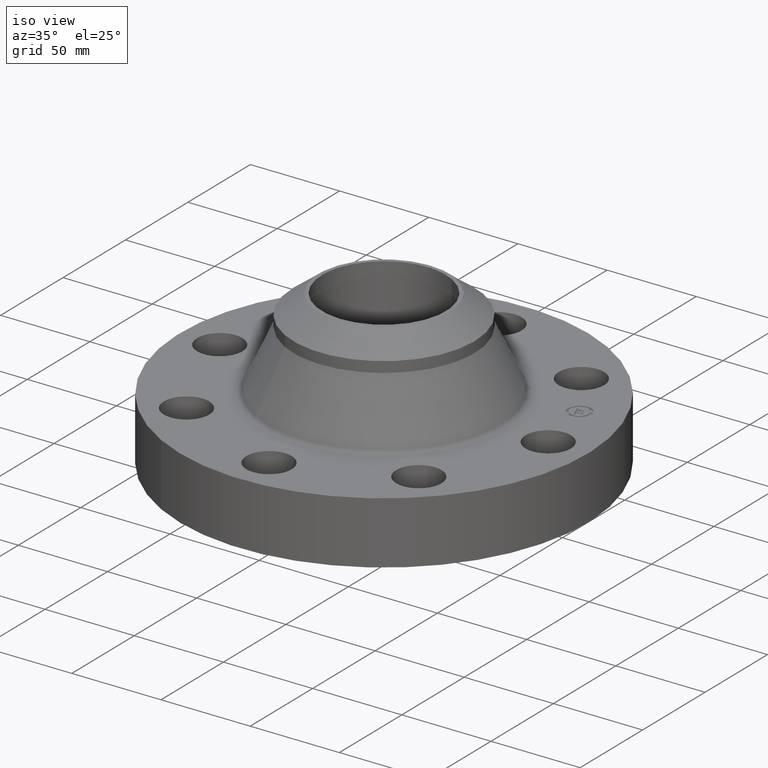
[diagram: clean part render]
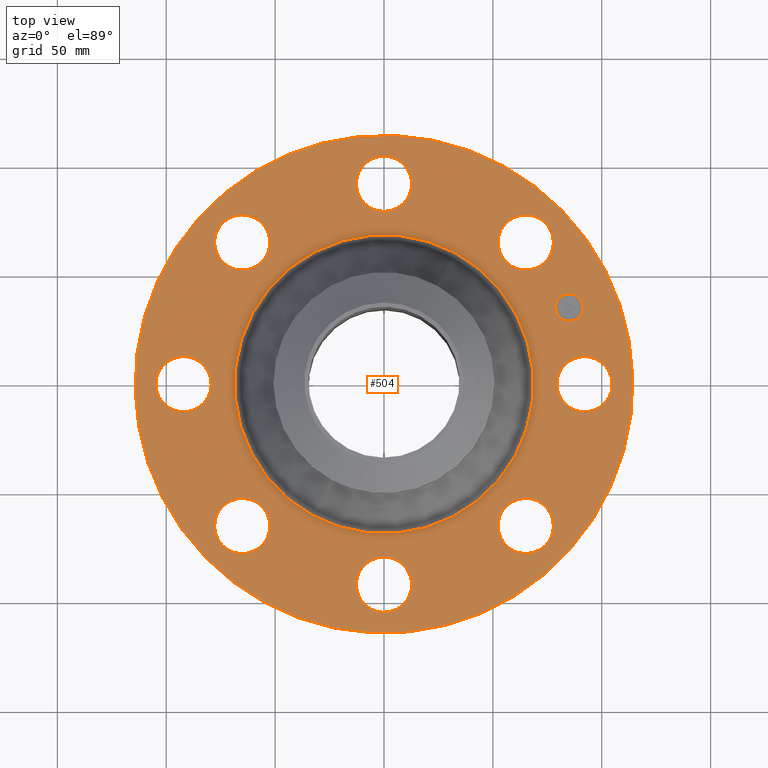
[diagram: tour spotlight — one face highlighted and labeled with its STEP entity id]
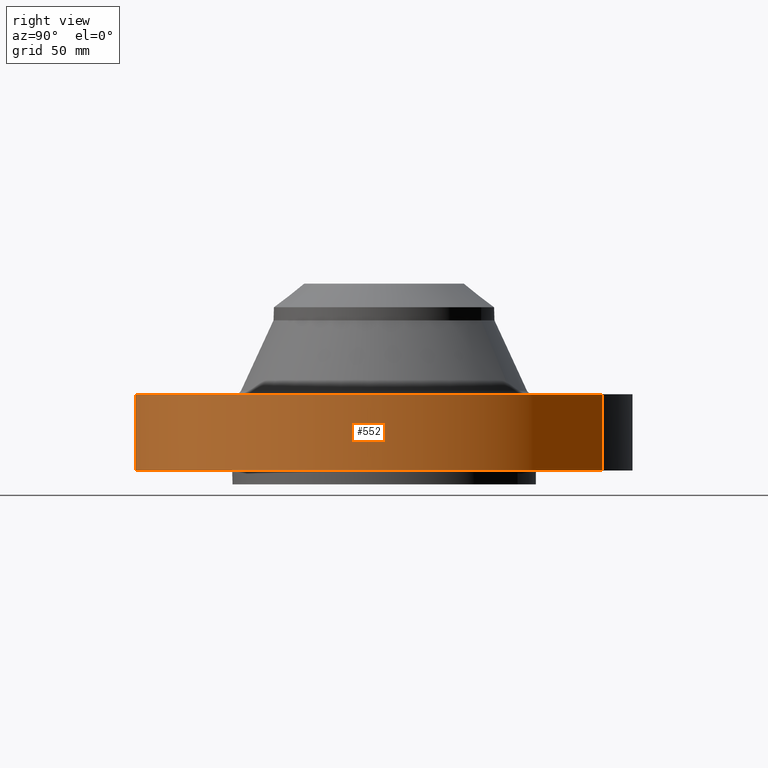
[diagram: tour spotlight — one face highlighted and labeled with its STEP entity id]
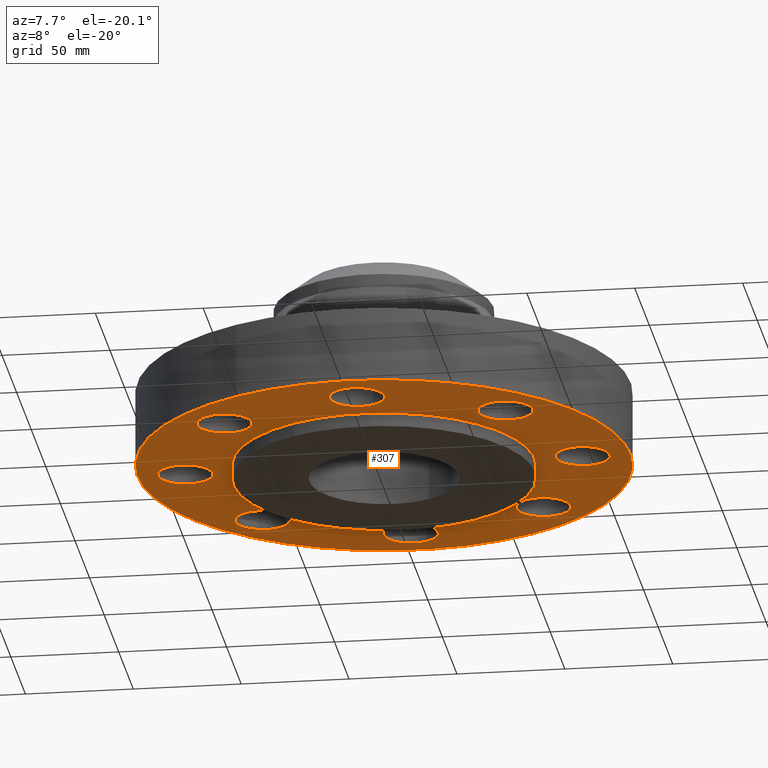
[diagram: tour spotlight — one face highlighted and labeled with its STEP entity id]
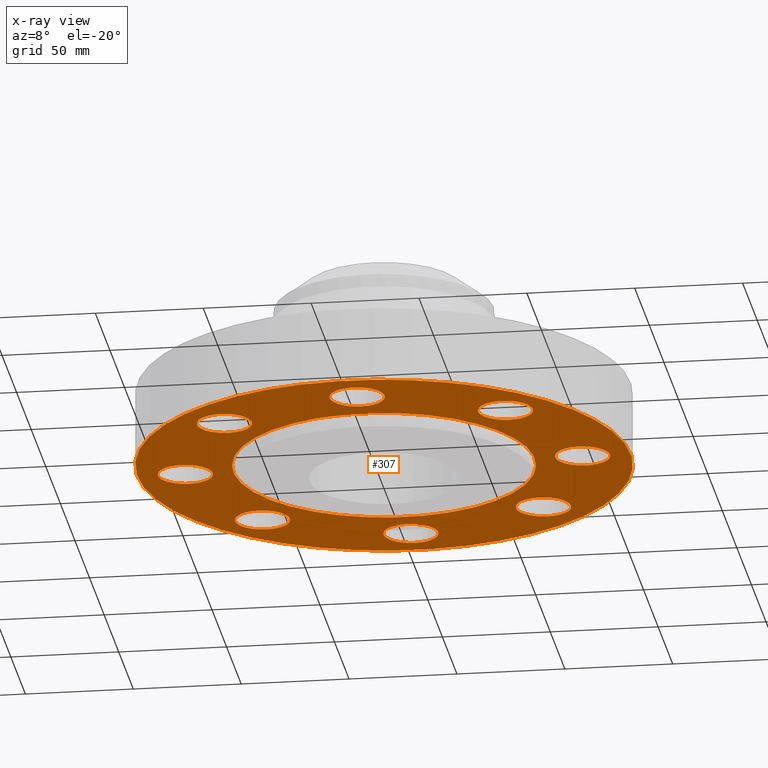
[diagram: x-ray of the same camera — body ghosted, this tour face saturated]
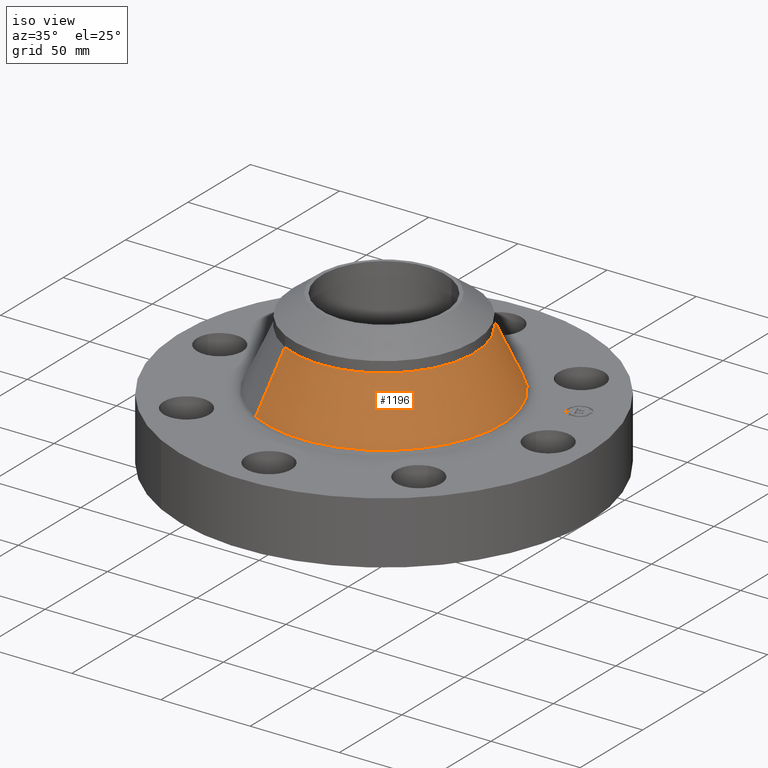
[diagram: tour spotlight — one face highlighted and labeled with its STEP entity id]
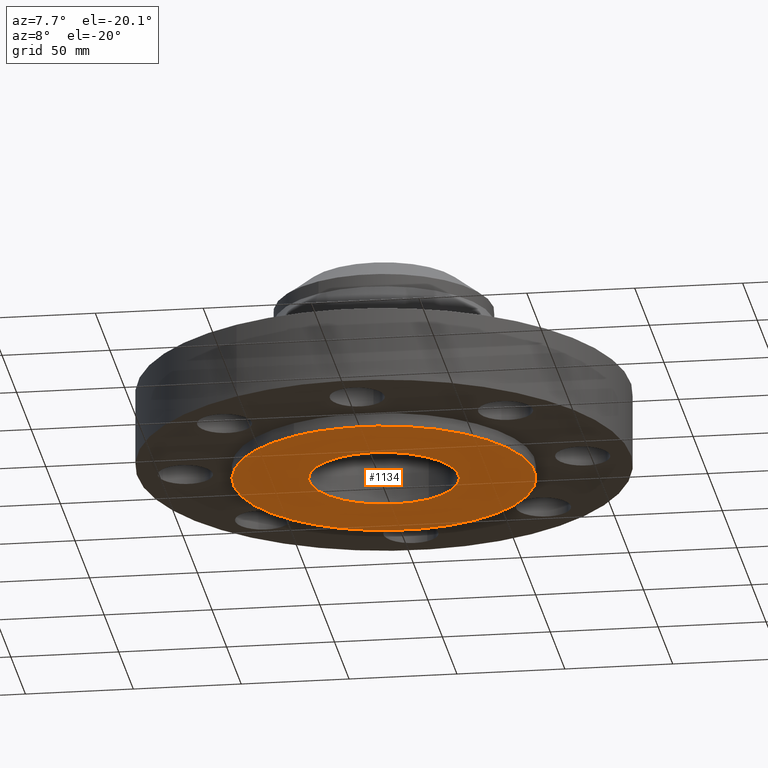
[diagram: tour spotlight — one face highlighted and labeled with its STEP entity id]
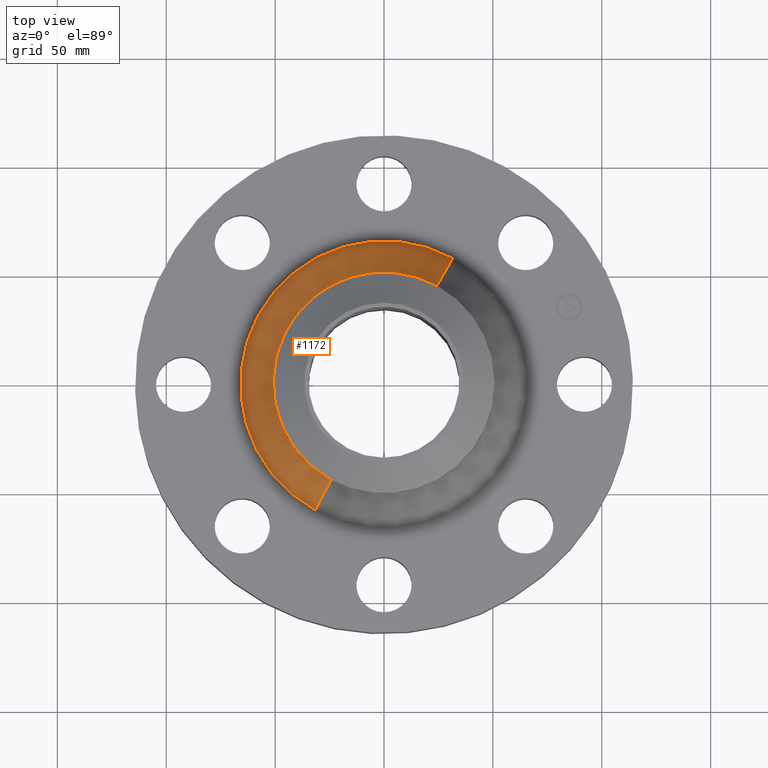
[diagram: tour spotlight — one face highlighted and labeled with its STEP entity id]
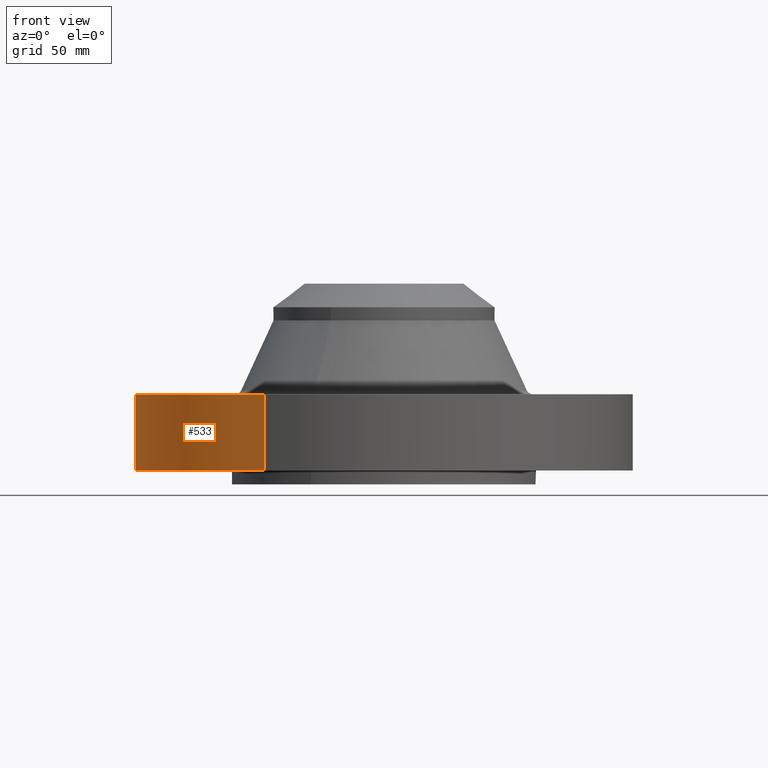
[diagram: tour spotlight — one face highlighted and labeled with its STEP entity id]
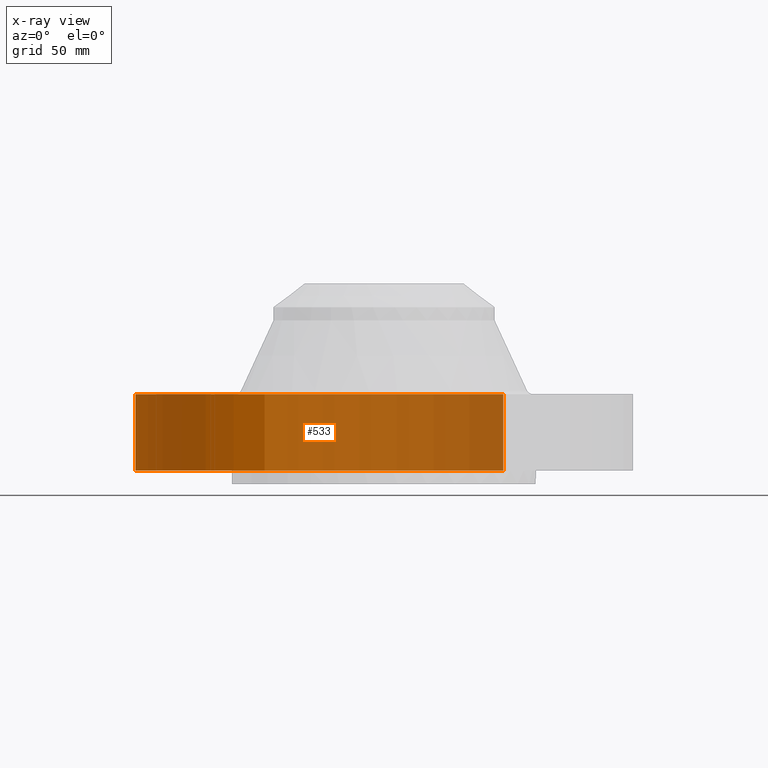
[diagram: x-ray of the same camera — body ghosted, this tour face saturated]
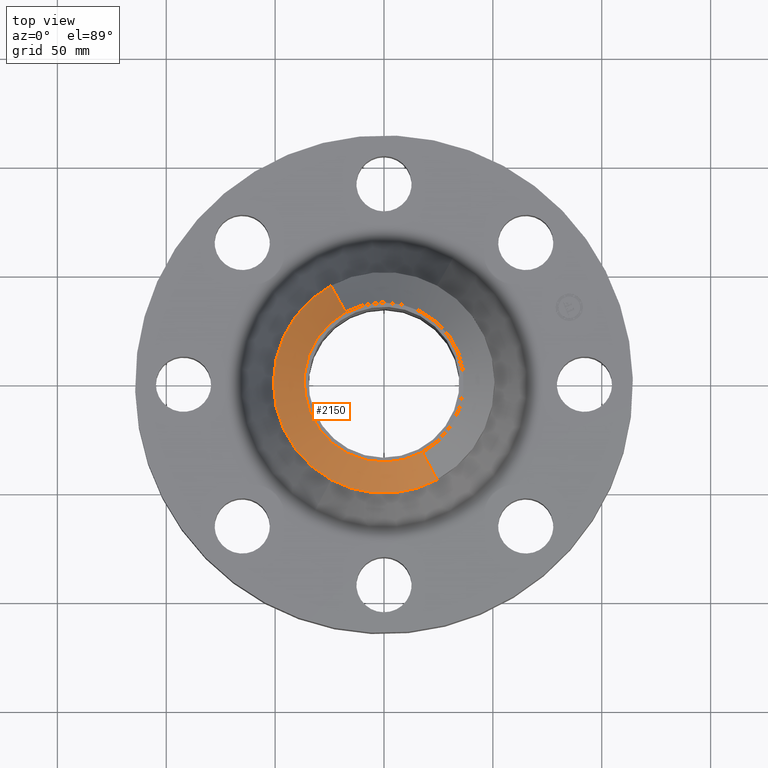
[diagram: tour spotlight — one face highlighted and labeled with its STEP entity id]
A machine part: a face-by-face anatomy tour. The part has 419 B-rep faces; the first image is the clean iso view, then the 8 largest visible faces are spotlighted one at a time (largest first), each with its STEP entity span.

Face 1 — top view, entity #504. In plain terms, the highlighted planar face has unit normal (0, 0, -1).
Definition (entity closure, byte-faithful):
#65=AXIS2_PLACEMENT_3D('Circle Axis2P3D',#63,#64,$) ;
#318=AXIS2_PLACEMENT_3D('Plane Axis2P3D',#315,#316,#317) ;
#322=AXIS2_PLACEMENT_3D('Circle Axis2P3D',#320,#321,$) ;
#331=AXIS2_PLACEMENT_3D('Circle Axis2P3D',#329,#330,$) ;
#344=AXIS2_PLACEMENT_3D('Circle Axis2P3D',#342,#343,$) ;
#353=AXIS2_PLACEMENT_3D('Circle Axis2P3D',#351,#352,$) ;
#362=AXIS2_PLACEMENT_3D('Circle Axis2P3D',#360,#361,$) ;
#371=AXIS2_PLACEMENT_3D('Circle Axis2P3D',#369,#370,$) ;
#380=AXIS2_PLACEMENT_3D('Circle Axis2P3D',#378,#379,$) ;
#389=AXIS2_PLACEMENT_3D('Circle Axis2P3D',#387,#388,$) ;
#398=AXIS2_PLACEMENT_3D('Circle Axis2P3D',#396,#397,$) ;
#407=AXIS2_PLACEMENT_3D('Circle Axis2P3D',#405,#406,$) ;
#416=AXIS2_PLACEMENT_3D('Circle Axis2P3D',#414,#415,$) ;
#425=AXIS2_PLACEMENT_3D('Circle Axis2P3D',#423,#424,$) ;
#434=AXIS2_PLACEMENT_3D('Circle Axis2P3D',#432,#433,$) ;
#443=AXIS2_PLACEMENT_3D('Circle Axis2P3D',#441,#442,$) ;
#452=AXIS2_PLACEMENT_3D('Circle Axis2P3D',#450,#451,$) ;
#461=AXIS2_PLACEMENT_3D('Circle Axis2P3D',#459,#460,$) ;
#470=AXIS2_PLACEMENT_3D('Circle Axis2P3D',#468,#469,$) ;
#479=AXIS2_PLACEMENT_3D('Circle Axis2P3D',#477,#478,$) ;
#488=AXIS2_PLACEMENT_3D('Circle Axis2P3D',#486,#487,$) ;
#497=AXIS2_PLACEMENT_3D('Circle Axis2P3D',#495,#496,$) ;
#46=CARTESIAN_POINT('Vertex',(3.18620871906,0.239712769303,1.37999999999)) ;
#60=CARTESIAN_POINT('Vertex',(4.06379128096,-0.239712769302,1.37999999999)) ;
#63=CARTESIAN_POINT('Axis2P3D Location',(3.62500000001,0.,1.37999999999)) ;
#106=CARTESIAN_POINT('Control Point',(4.06379128096,-0.239712769302,1.37999999999)) ;
#107=CARTESIAN_POINT('Control Point',(4.02613728721,-0.308637942536,1.37999999999)) ;
#108=CARTESIAN_POINT('Control Point',(3.97494986734,-0.370169771386,1.37999999999)) ;
#109=CARTESIAN_POINT('Control Point',(3.91215377557,-0.420753227527,1.37999999999)) ;
#110=CARTESIAN_POINT('Control Point',(3.77011145901,-0.494572276324,1.37999999999)) ;
#111=CARTESIAN_POINT('Control Point',(3.61070236874,-0.509201479801,1.38)) ;
#112=CARTESIAN_POINT('Control Point',(3.53053092156,-0.500565842331,1.38)) ;
#113=CARTESIAN_POINT('Control Point',(3.37789388632,-0.452324707065,1.38)) ;
#114=CARTESIAN_POINT('Control Point',(3.25483022862,-0.349949867328,1.38)) ;
#115=CARTESIAN_POINT('Control Point',(3.20424677248,-0.287153775558,1.38)) ;
#116=CARTESIAN_POINT('Control Point',(3.13042772369,-0.145111459003,1.38)) ;
#117=CARTESIAN_POINT('Control Point',(3.11579852021,0.0142976312751,1.38000000001)) ;
#118=CARTESIAN_POINT('Control Point',(3.12443415768,0.0944690784508,1.38000000001)) ;
#119=CARTESIAN_POINT('Control Point',(3.14855472531,0.170787596069,1.38000000001)) ;
#120=CARTESIAN_POINT('Control Point',(3.18620871906,0.239712769303,1.38000000001)) ;
#315=CARTESIAN_POINT('Axis2P3D Location',(0.,4.50000000002,1.38000000001)) ;
#320=CARTESIAN_POINT('Axis2P3D Location',(1.1189649382E-015,-9.33216758463E-012,1.38000000001)) ;
#324=CARTESIAN_POINT('Vertex',(2.15741492373,3.94912152852,1.38000000005)) ;
#326=CARTESIAN_POINT('Vertex',(-2.15741492373,-3.94912152852,1.38000000005)) ;
#329=CARTESIAN_POINT('Axis2P3D Location',(-1.1189649382E-015,-9.33328654957E-012,1.38000000001)) ;
#342=CARTESIAN_POINT('Axis2P3D Location',(2.79741234551E-016,-9.3327270671E-012,1.38000000001)) ;
#346=CARTESIAN_POINT('Vertex',(-1.29509544662,-2.37065631349,1.38000000001)) ;
#348=CARTESIAN_POINT('Vertex',(1.29509544662,2.37065631349,1.38000000001)) ;
#351=CARTESIAN_POINT('Axis2P3D Location',(-2.79741234551E-016,-9.3327270671E-012,1.38000000001)) ;
#360=CARTESIAN_POINT('Axis2P3D Location',(2.56326208183,-2.56326208177,1.38000000001)) ;
#364=CARTESIAN_POINT('Vertex',(2.70403184738,-3.0430368968,1.37999999999)) ;
#366=CARTESIAN_POINT('Vertex',(2.42249231624,-2.08348726682,1.37999999999)) ;
#369=CARTESIAN_POINT('Axis2P3D Location',(2.56326208183,-2.56326208177,1.38000000001)) ;
#378=CARTESIAN_POINT('Axis2P3D Location',(-4.36655785895E-011,-3.62499999999,1.38000000001)) ;
#382=CARTESIAN_POINT('Vertex',(-0.239712769302,-4.06379128096,1.37999999999)) ;
#384=CARTESIAN_POINT('Vertex',(0.239712769303,-3.18620871906,1.37999999999)) ;
#387=CARTESIAN_POINT('Axis2P3D Location',(1.28116589953E-011,-3.62500000002,1.38000000001)) ;
#396=CARTESIAN_POINT('Axis2P3D Location',(-2.56326208185,-2.56326208179,1.38000000001)) ;
#400=CARTESIAN_POINT('Vertex',(-3.0430368968,-2.70403184738,1.37999999999)) ;
#402=CARTESIAN_POINT('Vertex',(-2.08348726682,-2.42249231624,1.37999999999)) ;
#405=CARTESIAN_POINT('Axis2P3D Location',(-2.56326208185,-2.56326208179,1.38000000001)) ;
#414=CARTESIAN_POINT('Axis2P3D Location',(-3.62499999998,3.43326417165E-011,1.38000000001)) ;
#418=CARTESIAN_POINT('Vertex',(-4.06379128096,0.239712769302,1.37999999999)) ;
#420=CARTESIAN_POINT('Vertex',(-3.18620871906,-0.239712769303,1.37999999999)) ;
#423=CARTESIAN_POINT('Axis2P3D Location',(-3.625,3.47886199288E-012,1.38000000001)) ;
#432=CARTESIAN_POINT('Axis2P3D Location',(-2.56326208185,2.56326208182,1.38000000001)) ;
#436=CARTESIAN_POINT('Vertex',(-2.70403184738,3.0430368968,1.37999999999)) ;
#438=CARTESIAN_POINT('Vertex',(-2.42249231624,2.08348726682,1.37999999999)) ;
#441=CARTESIAN_POINT('Axis2P3D Location',(-2.56326208185,2.56326208182,1.38000000001)) ;
#450=CARTESIAN_POINT('Axis2P3D Location',(1.28116589953E-011,3.62499999999,1.38000000001)) ;
#454=CARTESIAN_POINT('Vertex',(0.239712769302,4.06379128096,1.37999999999)) ;
#456=CARTESIAN_POINT('Vertex',(-0.239712769303,3.18620871906,1.37999999999)) ;
#459=CARTESIAN_POINT('Axis2P3D Location',(-4.36655785895E-011,3.62500000002,1.38000000001)) ;
#468=CARTESIAN_POINT('Axis2P3D Location',(2.56326208183,2.56326208184,1.38000000001)) ;
#472=CARTESIAN_POINT('Vertex',(3.0430368968,2.70403184738,1.37999999999)) ;
#474=CARTESIAN_POINT('Vertex',(2.08348726682,2.42249231624,1.37999999999)) ;
#477=CARTESIAN_POINT('Axis2P3D Location',(2.56326208183,2.56326208184,1.38000000001)) ;
#486=CARTESIAN_POINT('Axis2P3D Location',(3.34906330537,1.38722744234,1.38000000001)) ;
#490=CARTESIAN_POINT('Vertex',(3.25434915589,1.61588762666,1.38000000001)) ;
#492=CARTESIAN_POINT('Vertex',(3.44377745486,1.15856725802,1.38000000001)) ;
#495=CARTESIAN_POINT('Axis2P3D Location',(3.34906330535,1.38722744233,1.38000000001)) ;
#64=DIRECTION('Axis2P3D Direction',(0.,-0.,-0.0393700787402)) ;
#316=DIRECTION('Axis2P3D Direction',(0.,0.,-0.0393700787402)) ;
#317=DIRECTION('Axis2P3D XDirection',(0.0393700787402,0.,0.)) ;
#321=DIRECTION('Axis2P3D Direction',(0.,0.,-0.0393700787402)) ;
#330=DIRECTION('Axis2P3D Direction',(0.,0.,-0.0393700787402)) ;
#343=DIRECTION('Axis2P3D Direction',(0.,0.,-0.0393700787402)) ;
#352=DIRECTION('Axis2P3D Direction',(0.,0.,-0.0393700787402)) ;
#361=DIRECTION('Axis2P3D Direction',(0.,0.,-0.0393700787402)) ;
#370=DIRECTION('Axis2P3D Direction',(0.,0.,-0.0393700787402)) ;
#379=DIRECTION('Axis2P3D Direction',(0.,0.,-0.0393700787402)) ;
#388=DIRECTION('Axis2P3D Direction',(0.,0.,-0.0393700787402)) ;
#397=DIRECTION('Axis2P3D Direction',(0.,0.,-0.0393700787402)) ;
#406=DIRECTION('Axis2P3D Direction',(0.,0.,-0.0393700787402)) ;
#415=DIRECTION('Axis2P3D Direction',(0.,0.,-0.0393700787402)) ;
#424=DIRECTION('Axis2P3D Direction',(0.,0.,-0.0393700787402)) ;
#433=DIRECTION('Axis2P3D Direction',(0.,0.,-0.0393700787402)) ;
#442=DIRECTION('Axis2P3D Direction',(0.,0.,-0.0393700787402)) ;
#451=DIRECTION('Axis2P3D Direction',(0.,0.,-0.0393700787402)) ;
#460=DIRECTION('Axis2P3D Direction',(0.,0.,-0.0393700787402)) ;
#469=DIRECTION('Axis2P3D Direction',(0.,0.,-0.0393700787402)) ;
#478=DIRECTION('Axis2P3D Direction',(0.,0.,-0.0393700787402)) ;
#487=DIRECTION('Axis2P3D Direction',(0.,0.,-0.0393700787402)) ;
#496=DIRECTION('Axis2P3D Direction',(0.,0.,-0.0393700787402)) ;
#335=ORIENTED_EDGE('',*,*,#328,.F.) ;
#336=ORIENTED_EDGE('',*,*,#333,.F.) ;
#339=ORIENTED_EDGE('',*,*,#67,.T.) ;
#340=ORIENTED_EDGE('',*,*,#121,.T.) ;
#357=ORIENTED_EDGE('',*,*,#350,.T.) ;
#358=ORIENTED_EDGE('',*,*,#355,.T.) ;
#375=ORIENTED_EDGE('',*,*,#368,.T.) ;
#376=ORIENTED_EDGE('',*,*,#373,.T.) ;
#393=ORIENTED_EDGE('',*,*,#386,.T.) ;
#394=ORIENTED_EDGE('',*,*,#391,.T.) ;
#411=ORIENTED_EDGE('',*,*,#404,.T.) ;
#412=ORIENTED_EDGE('',*,*,#409,.T.) ;
#429=ORIENTED_EDGE('',*,*,#422,.T.) ;
#430=ORIENTED_EDGE('',*,*,#427,.T.) ;
#447=ORIENTED_EDGE('',*,*,#440,.T.) ;
#448=ORIENTED_EDGE('',*,*,#445,.T.) ;
#465=ORIENTED_EDGE('',*,*,#458,.T.) ;
#466=ORIENTED_EDGE('',*,*,#463,.T.) ;
#483=ORIENTED_EDGE('',*,*,#476,.T.) ;
#484=ORIENTED_EDGE('',*,*,#481,.T.) ;
#501=ORIENTED_EDGE('',*,*,#494,.T.) ;
#502=ORIENTED_EDGE('',*,*,#499,.T.) ;
#341=FACE_BOUND('',#338,.T.) ;
#359=FACE_BOUND('',#356,.T.) ;
#377=FACE_BOUND('',#374,.T.) ;
#395=FACE_BOUND('',#392,.T.) ;
#413=FACE_BOUND('',#410,.T.) ;
#431=FACE_BOUND('',#428,.T.) ;
#449=FACE_BOUND('',#446,.T.) ;
#467=FACE_BOUND('',#464,.T.) ;
#485=FACE_BOUND('',#482,.T.) ;
#503=FACE_BOUND('',#500,.T.) ;
#504=ADVANCED_FACE('PartBody',(#337,#341,#359,#377,#395,#413,#431,#449,#467,#485,#503),#319,.F.) ;
#105=B_SPLINE_CURVE_WITH_KNOTS('',5,(#106,#107,#108,#109,#110,#111,#112,#113,#114,#115,#116,#117,#118,#119,#120),.UNSPECIFIED.,.F.,.U.,(6,3,3,3,6),(-19.9491133504,-9.9745566752,1.7763568394E-015,9.9745566752,19.9491133504),.UNSPECIFIED.) ;
#66=CIRCLE('generated circle',#65,0.500000000002) ;
#323=CIRCLE('generated circle',#322,4.50000000003) ;
#332=CIRCLE('generated circle',#331,4.50000000003) ;
#345=CIRCLE('generated circle',#344,2.70134847296) ;
#354=CIRCLE('generated circle',#353,2.70134847296) ;
#363=CIRCLE('generated circle',#362,0.5) ;
#372=CIRCLE('generated circle',#371,0.5) ;
#381=CIRCLE('generated circle',#380,0.499999999995) ;
#390=CIRCLE('generated circle',#389,0.499999999995) ;
#399=CIRCLE('generated circle',#398,0.5) ;
#408=CIRCLE('generated circle',#407,0.5) ;
#417=CIRCLE('generated circle',#416,0.499999999995) ;
#426=CIRCLE('generated circle',#425,0.499999999995) ;
#435=CIRCLE('generated circle',#434,0.5) ;
#444=CIRCLE('generated circle',#443,0.5) ;
#453=CIRCLE('generated circle',#452,0.499999999995) ;
#462=CIRCLE('generated circle',#461,0.499999999995) ;
#471=CIRCLE('generated circle',#470,0.5) ;
#480=CIRCLE('generated circle',#479,0.5) ;
#489=CIRCLE('generated circle',#488,0.247500000009) ;
#498=CIRCLE('generated circle',#497,0.247500000009) ;
#67=EDGE_CURVE('',#47,#61,#66,.T.) ;
#121=EDGE_CURVE('',#61,#47,#105,.T.) ;
#328=EDGE_CURVE('',#325,#327,#323,.T.) ;
#333=EDGE_CURVE('',#327,#325,#332,.T.) ;
#350=EDGE_CURVE('',#347,#349,#345,.T.) ;
#355=EDGE_CURVE('',#349,#347,#354,.T.) ;
#368=EDGE_CURVE('',#365,#367,#363,.T.) ;
#373=EDGE_CURVE('',#367,#365,#372,.T.) ;
#386=EDGE_CURVE('',#383,#385,#381,.T.) ;
#391=EDGE_CURVE('',#385,#383,#390,.T.) ;
#404=EDGE_CURVE('',#401,#403,#399,.T.) ;
#409=EDGE_CURVE('',#403,#401,#408,.T.) ;
#422=EDGE_CURVE('',#419,#421,#417,.T.) ;
#427=EDGE_CURVE('',#421,#419,#426,.T.) ;
#440=EDGE_CURVE('',#437,#439,#435,.T.) ;
#445=EDGE_CURVE('',#439,#437,#444,.T.) ;
#458=EDGE_CURVE('',#455,#457,#453,.T.) ;
#463=EDGE_CURVE('',#457,#455,#462,.T.) ;
#476=EDGE_CURVE('',#473,#475,#471,.T.) ;
#481=EDGE_CURVE('',#475,#473,#480,.T.) ;
#494=EDGE_CURVE('',#491,#493,#489,.T.) ;
#499=EDGE_CURVE('',#493,#491,#498,.T.) ;
#334=EDGE_LOOP('',(#335,#336)) ;
#338=EDGE_LOOP('',(#339,#340)) ;
#356=EDGE_LOOP('',(#357,#358)) ;
#374=EDGE_LOOP('',(#375,#376)) ;
#392=EDGE_LOOP('',(#393,#394)) ;
#410=EDGE_LOOP('',(#411,#412)) ;
#428=EDGE_LOOP('',(#429,#430)) ;
#446=EDGE_LOOP('',(#447,#448)) ;
#464=EDGE_LOOP('',(#465,#466)) ;
#482=EDGE_LOOP('',(#483,#484)) ;
#500=EDGE_LOOP('',(#501,#502)) ;
#337=FACE_OUTER_BOUND('',#334,.T.) ;
#319=PLANE('',#318) ;
#47=VERTEX_POINT('',#46) ;
#61=VERTEX_POINT('',#60) ;
#325=VERTEX_POINT('',#324) ;
#327=VERTEX_POINT('',#326) ;
#347=VERTEX_POINT('',#346) ;
#349=VERTEX_POINT('',#348) ;
#365=VERTEX_POINT('',#364) ;
#367=VERTEX_POINT('',#366) ;
#383=VERTEX_POINT('',#382) ;
#385=VERTEX_POINT('',#384) ;
#401=VERTEX_POINT('',#400) ;
#403=VERTEX_POINT('',#402) ;
#419=VERTEX_POINT('',#418) ;
#421=VERTEX_POINT('',#420) ;
#437=VERTEX_POINT('',#436) ;
#439=VERTEX_POINT('',#438) ;
#455=VERTEX_POINT('',#454) ;
#457=VERTEX_POINT('',#456) ;
#473=VERTEX_POINT('',#472) ;
#475=VERTEX_POINT('',#474) ;
#491=VERTEX_POINT('',#490) ;
#493=VERTEX_POINT('',#492) ;

Face 2 — right view, entity #552. In plain terms, the highlighted cylindrical surface (partial cylindrical patch) has radius 114.3 mm, axis along (0, 0, -1).
Definition (entity closure, byte-faithful):
#152=AXIS2_PLACEMENT_3D('Circle Axis2P3D',#150,#151,$) ;
#322=AXIS2_PLACEMENT_3D('Circle Axis2P3D',#320,#321,$) ;
#544=AXIS2_PLACEMENT_3D('Cylinder Axis2P3D',#541,#542,#543) ;
#145=CARTESIAN_POINT('Vertex',(-2.15741492373,-3.94912152852,3.54627963041E-012)) ;
#147=CARTESIAN_POINT('Vertex',(2.15741492373,3.94912152852,3.54627963041E-012)) ;
#150=CARTESIAN_POINT('Axis2P3D Location',(1.1189649382E-015,2.46675820627E-011,0.)) ;
#320=CARTESIAN_POINT('Axis2P3D Location',(1.1189649382E-015,-9.33216758463E-012,1.38000000001)) ;
#324=CARTESIAN_POINT('Vertex',(2.15741492373,3.94912152852,1.38000000005)) ;
#326=CARTESIAN_POINT('Vertex',(-2.15741492373,-3.94912152852,1.38000000005)) ;
#517=CARTESIAN_POINT('Line Origine',(-2.15741492373,-3.94912152852,0.690000000025)) ;
#522=CARTESIAN_POINT('Line Origine',(2.15741492373,3.94912152852,0.690000000025)) ;
#541=CARTESIAN_POINT('Axis2P3D Location',(0.,0.,1.56500000001)) ;
#151=DIRECTION('Axis2P3D Direction',(0.,0.,-0.0393700787402)) ;
#321=DIRECTION('Axis2P3D Direction',(0.,0.,-0.0393700787402)) ;
#518=DIRECTION('Vector Direction',(0.,0.,-0.0393700787402)) ;
#523=DIRECTION('Vector Direction',(0.,0.,-0.0393700787402)) ;
#542=DIRECTION('Axis2P3D Direction',(0.,0.,-0.0393700787402)) ;
#543=DIRECTION('Axis2P3D XDirection',(0.0188750212049,0.0345504945626,0.)) ;
#519=VECTOR('Line Direction',#518,0.0393700787402) ;
#524=VECTOR('Line Direction',#523,0.0393700787402) ;
#547=ORIENTED_EDGE('',*,*,#154,.F.) ;
#548=ORIENTED_EDGE('',*,*,#526,.T.) ;
#549=ORIENTED_EDGE('',*,*,#328,.T.) ;
#550=ORIENTED_EDGE('',*,*,#521,.F.) ;
#552=ADVANCED_FACE('PartBody',(#551),#545,.T.) ;
#153=CIRCLE('generated circle',#152,4.50000000003) ;
#323=CIRCLE('generated circle',#322,4.50000000003) ;
#545=CYLINDRICAL_SURFACE('generated cylinder',#544,4.50000000002) ;
#154=EDGE_CURVE('',#148,#146,#153,.T.) ;
#328=EDGE_CURVE('',#325,#327,#323,.T.) ;
#521=EDGE_CURVE('',#146,#327,#520,.F.) ;
#526=EDGE_CURVE('',#148,#325,#525,.F.) ;
#546=EDGE_LOOP('',(#547,#548,#549,#550)) ;
#551=FACE_OUTER_BOUND('',#546,.T.) ;
#520=LINE('Line',#517,#519) ;
#525=LINE('Line',#522,#524) ;
#146=VERTEX_POINT('',#145) ;
#148=VERTEX_POINT('',#147) ;
#325=VERTEX_POINT('',#324) ;
#327=VERTEX_POINT('',#326) ;

Face 3 — auxiliary view, entity #307. An x-ray twin of the same camera follows (body ghosted, this face saturated) — the face is partly hidden behind the body. In plain terms, the highlighted planar face has unit normal (0, 0, -1).
Definition (entity closure, byte-faithful):
#51=AXIS2_PLACEMENT_3D('Circle Axis2P3D',#49,#50,$) ;
#139=AXIS2_PLACEMENT_3D('Plane Axis2P3D',#136,#137,#138) ;
#143=AXIS2_PLACEMENT_3D('Circle Axis2P3D',#141,#142,$) ;
#152=AXIS2_PLACEMENT_3D('Circle Axis2P3D',#150,#151,$) ;
#165=AXIS2_PLACEMENT_3D('Circle Axis2P3D',#163,#164,$) ;
#174=AXIS2_PLACEMENT_3D('Circle Axis2P3D',#172,#173,$) ;
#183=AXIS2_PLACEMENT_3D('Circle Axis2P3D',#181,#182,$) ;
#192=AXIS2_PLACEMENT_3D('Circle Axis2P3D',#190,#191,$) ;
#201=AXIS2_PLACEMENT_3D('Circle Axis2P3D',#199,#200,$) ;
#210=AXIS2_PLACEMENT_3D('Circle Axis2P3D',#208,#209,$) ;
#219=AXIS2_PLACEMENT_3D('Circle Axis2P3D',#217,#218,$) ;
#228=AXIS2_PLACEMENT_3D('Circle Axis2P3D',#226,#227,$) ;
#237=AXIS2_PLACEMENT_3D('Circle Axis2P3D',#235,#236,$) ;
#246=AXIS2_PLACEMENT_3D('Circle Axis2P3D',#244,#245,$) ;
#255=AXIS2_PLACEMENT_3D('Circle Axis2P3D',#253,#254,$) ;
#264=AXIS2_PLACEMENT_3D('Circle Axis2P3D',#262,#263,$) ;
#273=AXIS2_PLACEMENT_3D('Circle Axis2P3D',#271,#272,$) ;
#282=AXIS2_PLACEMENT_3D('Circle Axis2P3D',#280,#281,$) ;
#291=AXIS2_PLACEMENT_3D('Circle Axis2P3D',#289,#290,$) ;
#300=AXIS2_PLACEMENT_3D('Circle Axis2P3D',#298,#299,$) ;
#44=CARTESIAN_POINT('Vertex',(3.18620871906,0.239712769306,2.04418109736E-011)) ;
#49=CARTESIAN_POINT('Axis2P3D Location',(3.62500000001,0.,2.04418109736E-011)) ;
#53=CARTESIAN_POINT('Vertex',(4.06379128096,-0.239712769303,2.04418109736E-011)) ;
#89=CARTESIAN_POINT('Control Point',(4.06379128096,-0.239712769302,2.04418109736E-011)) ;
#90=CARTESIAN_POINT('Control Point',(4.02613728721,-0.308637942536,1.94197204249E-011)) ;
#91=CARTESIAN_POINT('Control Point',(3.97494986734,-0.370169771386,1.83976298762E-011)) ;
#92=CARTESIAN_POINT('Control Point',(3.91215377557,-0.420753227527,1.73753994569E-011)) ;
#93=CARTESIAN_POINT('Control Point',(3.77011145901,-0.494572276324,1.53312183596E-011)) ;
#94=CARTESIAN_POINT('Control Point',(3.61070236874,-0.509201479801,1.32870372622E-011)) ;
#95=CARTESIAN_POINT('Control Point',(3.53053092156,-0.500565842331,1.22650865842E-011)) ;
#96=CARTESIAN_POINT('Control Point',(3.37789388632,-0.452324707065,1.02209054868E-011)) ;
#97=CARTESIAN_POINT('Control Point',(3.25483022862,-0.349949867328,8.17672438944E-012)) ;
#98=CARTESIAN_POINT('Control Point',(3.20424677248,-0.287153775558,7.15449397014E-012)) ;
#99=CARTESIAN_POINT('Control Point',(3.13042772369,-0.145111459003,5.11031287278E-012)) ;
#100=CARTESIAN_POINT('Control Point',(3.11579852021,0.0142976312751,3.06613177542E-012)) ;
#101=CARTESIAN_POINT('Control Point',(3.12443415768,0.0944690784508,2.04418109736E-012)) ;
#102=CARTESIAN_POINT('Control Point',(3.14855472531,0.170787596069,1.02209054868E-012)) ;
#103=CARTESIAN_POINT('Control Point',(3.18620871906,0.239712769303,0.)) ;
#136=CARTESIAN_POINT('Axis2P3D Location',(0.,2.75000000001,0.)) ;
#141=CARTESIAN_POINT('Axis2P3D Location',(3.08532202411E-011,7.81149423361E-012,0.)) ;
#145=CARTESIAN_POINT('Vertex',(-2.15741492373,-3.94912152852,3.54627963041E-012)) ;
#147=CARTESIAN_POINT('Vertex',(2.15741492373,3.94912152852,3.54627963041E-012)) ;
#150=CARTESIAN_POINT('Axis2P3D Location',(1.1189649382E-015,2.46675820627E-011,0.)) ;
#163=CARTESIAN_POINT('Axis2P3D Location',(4.36664877485E-011,-3.58533150675E-011,0.)) ;
#167=CARTESIAN_POINT('Vertex',(1.31842023117,2.41335204521,3.54627963041E-012)) ;
#169=CARTESIAN_POINT('Vertex',(-1.31842023117,-2.41335204521,3.54627963041E-012)) ;
#172=CARTESIAN_POINT('Axis2P3D Location',(-4.36664877485E-011,1.18548740378E-011,0.)) ;
#181=CARTESIAN_POINT('Axis2P3D Location',(2.56326208185,-2.56326208181,0.)) ;
#185=CARTESIAN_POINT('Vertex',(2.42249231624,-2.08348726683,0.)) ;
#187=CARTESIAN_POINT('Vertex',(2.70403184737,-3.04303689681,0.)) ;
#190=CARTESIAN_POINT('Axis2P3D Location',(2.56326208185,-2.56326208181,0.)) ;
#199=CARTESIAN_POINT('Axis2P3D Location',(4.36655785895E-011,-3.62500000001,0.)) ;
#203=CARTESIAN_POINT('Vertex',(0.239712769298,-3.18620871904,0.)) ;
#205=CARTESIAN_POINT('Vertex',(-0.239712769298,-4.06379128093,0.)) ;
#208=CARTESIAN_POINT('Axis2P3D Location',(-1.28116589953E-011,-3.62499999998,0.)) ;
#217=CARTESIAN_POINT('Axis2P3D Location',(-2.56326208183,-2.56326208183,0.)) ;
#221=CARTESIAN_POINT('Vertex',(-2.08348726685,-2.42249231622,0.)) ;
#223=CARTESIAN_POINT('Vertex',(-3.04303689684,-2.70403184735,0.)) ;
#226=CARTESIAN_POINT('Axis2P3D Location',(-2.56326208183,-2.56326208183,0.)) ;
#235=CARTESIAN_POINT('Axis2P3D Location',(-3.62500000003,-1.89983462033E-011,0.)) ;
#239=CARTESIAN_POINT('Vertex',(-3.18620871906,-0.239712769273,0.)) ;
#241=CARTESIAN_POINT('Vertex',(-4.06379128095,0.239712769322,0.)) ;
#244=CARTESIAN_POINT('Axis2P3D Location',(-3.62500000001,1.18554335203E-011,0.)) ;
#253=CARTESIAN_POINT('Axis2P3D Location',(-2.56326208183,2.56326208179,0.)) ;
#257=CARTESIAN_POINT('Vertex',(-2.42249231624,2.0834872668,0.)) ;
#259=CARTESIAN_POINT('Vertex',(-2.70403184737,3.04303689679,0.)) ;
#262=CARTESIAN_POINT('Axis2P3D Location',(-2.56326208183,2.56326208179,0.)) ;
#271=CARTESIAN_POINT('Axis2P3D Location',(-1.28116589953E-011,3.62500000004,0.)) ;
#275=CARTESIAN_POINT('Vertex',(-0.239712769298,3.18620871909,0.)) ;
#277=CARTESIAN_POINT('Vertex',(0.239712769298,4.06379128097,0.)) ;
#280=CARTESIAN_POINT('Axis2P3D Location',(4.36655785895E-011,3.62500000001,0.)) ;
#289=CARTESIAN_POINT('Axis2P3D Location',(2.56326208185,2.56326208181,0.)) ;
#293=CARTESIAN_POINT('Vertex',(2.08348726685,2.42249231627,0.)) ;
#295=CARTESIAN_POINT('Vertex',(3.04303689684,2.7040318474,0.)) ;
#298=CARTESIAN_POINT('Axis2P3D Location',(2.56326208185,2.56326208181,0.)) ;
#50=DIRECTION('Axis2P3D Direction',(0.,-0.,-0.0393700787402)) ;
#137=DIRECTION('Axis2P3D Direction',(0.,0.,-0.0393700787402)) ;
#138=DIRECTION('Axis2P3D XDirection',(0.0393700787402,0.,0.)) ;
#142=DIRECTION('Axis2P3D Direction',(0.,0.,-0.0393700787402)) ;
#151=DIRECTION('Axis2P3D Direction',(0.,0.,-0.0393700787402)) ;
#164=DIRECTION('Axis2P3D Direction',(0.,0.,-0.0393700787402)) ;
#173=DIRECTION('Axis2P3D Direction',(0.,0.,-0.0393700787402)) ;
#182=DIRECTION('Axis2P3D Direction',(0.,0.,-0.0393700787402)) ;
#191=DIRECTION('Axis2P3D Direction',(0.,0.,-0.0393700787402)) ;
#200=DIRECTION('Axis2P3D Direction',(0.,0.,-0.0393700787402)) ;
#209=DIRECTION('Axis2P3D Direction',(0.,0.,-0.0393700787402)) ;
#218=DIRECTION('Axis2P3D Direction',(0.,0.,-0.0393700787402)) ;
#227=DIRECTION('Axis2P3D Direction',(0.,0.,-0.0393700787402)) ;
#236=DIRECTION('Axis2P3D Direction',(0.,0.,-0.0393700787402)) ;
#245=DIRECTION('Axis2P3D Direction',(0.,0.,-0.0393700787402)) ;
#254=DIRECTION('Axis2P3D Direction',(0.,0.,-0.0393700787402)) ;
#263=DIRECTION('Axis2P3D Direction',(0.,0.,-0.0393700787402)) ;
#272=DIRECTION('Axis2P3D Direction',(0.,0.,-0.0393700787402)) ;
#281=DIRECTION('Axis2P3D Direction',(0.,0.,-0.0393700787402)) ;
#290=DIRECTION('Axis2P3D Direction',(0.,0.,-0.0393700787402)) ;
#299=DIRECTION('Axis2P3D Direction',(0.,0.,-0.0393700787402)) ;
#156=ORIENTED_EDGE('',*,*,#149,.T.) ;
#157=ORIENTED_EDGE('',*,*,#154,.T.) ;
#160=ORIENTED_EDGE('',*,*,#104,.F.) ;
#161=ORIENTED_EDGE('',*,*,#55,.F.) ;
#178=ORIENTED_EDGE('',*,*,#171,.F.) ;
#179=ORIENTED_EDGE('',*,*,#176,.F.) ;
#196=ORIENTED_EDGE('',*,*,#189,.F.) ;
#197=ORIENTED_EDGE('',*,*,#194,.F.) ;
#214=ORIENTED_EDGE('',*,*,#207,.F.) ;
#215=ORIENTED_EDGE('',*,*,#212,.F.) ;
#232=ORIENTED_EDGE('',*,*,#225,.F.) ;
#233=ORIENTED_EDGE('',*,*,#230,.F.) ;
#250=ORIENTED_EDGE('',*,*,#243,.F.) ;
#251=ORIENTED_EDGE('',*,*,#248,.F.) ;
#268=ORIENTED_EDGE('',*,*,#261,.F.) ;
#269=ORIENTED_EDGE('',*,*,#266,.F.) ;
#286=ORIENTED_EDGE('',*,*,#279,.F.) ;
#287=ORIENTED_EDGE('',*,*,#284,.F.) ;
#304=ORIENTED_EDGE('',*,*,#297,.F.) ;
#305=ORIENTED_EDGE('',*,*,#302,.F.) ;
#162=FACE_BOUND('',#159,.T.) ;
#180=FACE_BOUND('',#177,.T.) ;
#198=FACE_BOUND('',#195,.T.) ;
#216=FACE_BOUND('',#213,.T.) ;
#234=FACE_BOUND('',#231,.T.) ;
#252=FACE_BOUND('',#249,.T.) ;
#270=FACE_BOUND('',#267,.T.) ;
#288=FACE_BOUND('',#285,.T.) ;
#306=FACE_BOUND('',#303,.T.) ;
#307=ADVANCED_FACE('PartBody',(#158,#162,#180,#198,#216,#234,#252,#270,#288,#306),#140,.T.) ;
#88=B_SPLINE_CURVE_WITH_KNOTS('',5,(#89,#90,#91,#92,#93,#94,#95,#96,#97,#98,#99,#100,#101,#102,#103),.UNSPECIFIED.,.F.,.U.,(6,3,3,3,6),(-19.9491133504,-9.9745566752,1.7763568394E-015,9.9745566752,19.9491133504),.UNSPECIFIED.) ;
#52=CIRCLE('generated circle',#51,0.500000000002) ;
#144=CIRCLE('generated circle',#143,4.50000000003) ;
#153=CIRCLE('generated circle',#152,4.50000000003) ;
#166=CIRCLE('generated circle',#165,2.74999999999) ;
#175=CIRCLE('generated circle',#174,2.74999999999) ;
#184=CIRCLE('generated circle',#183,0.5) ;
#193=CIRCLE('generated circle',#192,0.5) ;
#202=CIRCLE('generated circle',#201,0.499999999995) ;
#211=CIRCLE('generated circle',#210,0.499999999995) ;
#220=CIRCLE('generated circle',#219,0.5) ;
#229=CIRCLE('generated circle',#228,0.5) ;
#238=CIRCLE('generated circle',#237,0.499999999995) ;
#247=CIRCLE('generated circle',#246,0.499999999995) ;
#256=CIRCLE('generated circle',#255,0.5) ;
#265=CIRCLE('generated circle',#264,0.5) ;
#274=CIRCLE('generated circle',#273,0.499999999995) ;
#283=CIRCLE('generated circle',#282,0.499999999995) ;
#292=CIRCLE('generated circle',#291,0.5) ;
#301=CIRCLE('generated circle',#300,0.5) ;
#55=EDGE_CURVE('',#45,#54,#52,.T.) ;
#104=EDGE_CURVE('',#54,#45,#88,.T.) ;
#149=EDGE_CURVE('',#146,#148,#144,.T.) ;
#154=EDGE_CURVE('',#148,#146,#153,.T.) ;
#171=EDGE_CURVE('',#168,#170,#166,.T.) ;
#176=EDGE_CURVE('',#170,#168,#175,.T.) ;
#189=EDGE_CURVE('',#186,#188,#184,.T.) ;
#194=EDGE_CURVE('',#188,#186,#193,.T.) ;
#207=EDGE_CURVE('',#204,#206,#202,.T.) ;
#212=EDGE_CURVE('',#206,#204,#211,.T.) ;
#225=EDGE_CURVE('',#222,#224,#220,.T.) ;
#230=EDGE_CURVE('',#224,#222,#229,.T.) ;
#243=EDGE_CURVE('',#240,#242,#238,.T.) ;
#248=EDGE_CURVE('',#242,#240,#247,.T.) ;
#261=EDGE_CURVE('',#258,#260,#256,.T.) ;
#266=EDGE_CURVE('',#260,#258,#265,.T.) ;
#279=EDGE_CURVE('',#276,#278,#274,.T.) ;
#284=EDGE_CURVE('',#278,#276,#283,.T.) ;
#297=EDGE_CURVE('',#294,#296,#292,.T.) ;
#302=EDGE_CURVE('',#296,#294,#301,.T.) ;
#155=EDGE_LOOP('',(#156,#157)) ;
#159=EDGE_LOOP('',(#160,#161)) ;
#177=EDGE_LOOP('',(#178,#179)) ;
#195=EDGE_LOOP('',(#196,#197)) ;
#213=EDGE_LOOP('',(#214,#215)) ;
#231=EDGE_LOOP('',(#232,#233)) ;
#249=EDGE_LOOP('',(#250,#251)) ;
#267=EDGE_LOOP('',(#268,#269)) ;
#285=EDGE_LOOP('',(#286,#287)) ;
#303=EDGE_LOOP('',(#304,#305)) ;
#158=FACE_OUTER_BOUND('',#155,.T.) ;
#140=PLANE('',#139) ;
#45=VERTEX_POINT('',#44) ;
#54=VERTEX_POINT('',#53) ;
#146=VERTEX_POINT('',#145) ;
#148=VERTEX_POINT('',#147) ;
#168=VERTEX_POINT('',#167) ;
#170=VERTEX_POINT('',#169) ;
#186=VERTEX_POINT('',#185) ;
#188=VERTEX_POINT('',#187) ;
#204=VERTEX_POINT('',#203) ;
#206=VERTEX_POINT('',#205) ;
#222=VERTEX_POINT('',#221) ;
#224=VERTEX_POINT('',#223) ;
#240=VERTEX_POINT('',#239) ;
#242=VERTEX_POINT('',#241) ;
#258=VERTEX_POINT('',#257) ;
#260=VERTEX_POINT('',#259) ;
#276=VERTEX_POINT('',#275) ;
#278=VERTEX_POINT('',#277) ;
#294=VERTEX_POINT('',#293) ;
#296=VERTEX_POINT('',#295) ;

Face 4 — iso view, entity #1196. In plain terms, the highlighted conical surface has half-angle 25.068 deg.
Definition (entity closure, byte-faithful):
#1015=AXIS2_PLACEMENT_3D('Circle Axis2P3D',#1013,#1014,$) ;
#1183=AXIS2_PLACEMENT_3D('Cone Axis2P3D',#1180,#1181,#1182) ;
#1187=AXIS2_PLACEMENT_3D('Circle Axis2P3D',#1185,#1186,$) ;
#979=CARTESIAN_POINT('Vertex',(-1.24298345448,-2.27526595171,1.44915691636)) ;
#986=CARTESIAN_POINT('Vertex',(1.24298345448,2.27526595171,1.44915691636)) ;
#1013=CARTESIAN_POINT('Axis2P3D Location',(0.,0.,1.44915691636)) ;
#1147=CARTESIAN_POINT('Line Origine',(-1.10091726585,-2.01521553775,2.08266796373)) ;
#1151=CARTESIAN_POINT('Vertex',(-0.958851077212,-1.75516512379,2.71617901109)) ;
#1158=CARTESIAN_POINT('Vertex',(0.958851077214,1.75516512379,2.71617901109)) ;
#1161=CARTESIAN_POINT('Line Origine',(1.10091726585,2.01521553775,2.08266796373)) ;
#1180=CARTESIAN_POINT('Axis2P3D Location',(0.,0.,2.71617901109)) ;
#1185=CARTESIAN_POINT('Axis2P3D Location',(0.,0.,2.71617901109)) ;
#1014=DIRECTION('Axis2P3D Direction',(-0.,0.,-0.0393700787402)) ;
#1148=DIRECTION('Vector Direction',(-0.00799720235001,-0.0146387807097,-0.0356616594386)) ;
#1162=DIRECTION('Vector Direction',(0.00799720235001,0.0146387807097,-0.0356616594386)) ;
#1181=DIRECTION('Axis2P3D Direction',(0.,0.,-0.0393700787402)) ;
#1182=DIRECTION('Axis2P3D XDirection',(0.0188750212049,0.0345504945626,0.)) ;
#1186=DIRECTION('Axis2P3D Direction',(-0.,0.,-0.0393700787402)) ;
#1149=VECTOR('Line Direction',#1148,0.0393700787402) ;
#1163=VECTOR('Line Direction',#1162,0.0393700787402) ;
#1191=ORIENTED_EDGE('',*,*,#1017,.F.) ;
#1192=ORIENTED_EDGE('',*,*,#1165,.T.) ;
#1193=ORIENTED_EDGE('',*,*,#1189,.T.) ;
#1194=ORIENTED_EDGE('',*,*,#1153,.F.) ;
#1196=ADVANCED_FACE('PartBody',(#1195),#1184,.T.) ;
#1016=CIRCLE('generated circle',#1015,2.59265173502) ;
#1188=CIRCLE('generated circle',#1187,2.00000000001) ;
#1184=CONICAL_SURFACE('Cone',#1183,2.00000000001,0.437517781368) ;
#1017=EDGE_CURVE('',#987,#980,#1016,.T.) ;
#1153=EDGE_CURVE('',#980,#1152,#1150,.F.) ;
#1165=EDGE_CURVE('',#987,#1159,#1164,.F.) ;
#1189=EDGE_CURVE('',#1159,#1152,#1188,.T.) ;
#1190=EDGE_LOOP('',(#1191,#1192,#1193,#1194)) ;
#1195=FACE_OUTER_BOUND('',#1190,.T.) ;
#1150=LINE('Line',#1147,#1149) ;
#1164=LINE('Line',#1161,#1163) ;
#980=VERTEX_POINT('',#979) ;
#987=VERTEX_POINT('',#986) ;
#1152=VERTEX_POINT('',#1151) ;
#1159=VERTEX_POINT('',#1158) ;

Face 5 — auxiliary view, entity #1134. In plain terms, the highlighted planar face has unit normal (0, 0, -1).
Definition (entity closure, byte-faithful):
#617=AXIS2_PLACEMENT_3D('Circle Axis2P3D',#615,#616,$) ;
#1110=AXIS2_PLACEMENT_3D('Plane Axis2P3D',#1107,#1108,#1109) ;
#1118=AXIS2_PLACEMENT_3D('Circle Axis2P3D',#1116,#1117,$) ;
#1127=AXIS2_PLACEMENT_3D('Circle Axis2P3D',#1125,#1126,$) ;
#566=CARTESIAN_POINT('Control Point',(1.31842023117,2.41335204521,-0.249999999982)) ;
#567=CARTESIAN_POINT('Control Point',(1.69750868396,2.20625507958,-0.249999999983)) ;
#568=CARTESIAN_POINT('Control Point',(2.03593374263,1.9247242703,-0.249999999984)) ;
#569=CARTESIAN_POINT('Control Point',(2.3141427514,1.57934576556,-0.249999999985)) ;
#570=CARTESIAN_POINT('Control Point',(2.72014751978,0.798113024512,-0.249999999987)) ;
#571=CARTESIAN_POINT('Control Point',(2.80060813891,-0.078636972015,-0.249999999989)) ;
#572=CARTESIAN_POINT('Control Point',(2.75311213282,-0.51957993148,-0.249999999989)) ;
#573=CARTESIAN_POINT('Control Point',(2.48778588885,-1.35908362528,-0.249999999991)) ;
#574=CARTESIAN_POINT('Control Point',(1.9247242703,-2.03593374263,-0.249999999993)) ;
#575=CARTESIAN_POINT('Control Point',(1.57934576556,-2.3141427514,-0.249999999994)) ;
#576=CARTESIAN_POINT('Control Point',(0.798113024513,-2.72014751978,-0.249999999996)) ;
#577=CARTESIAN_POINT('Control Point',(-0.0786369720145,-2.80060813891,-0.249999999998)) ;
#578=CARTESIAN_POINT('Control Point',(-0.51957993148,-2.75311213282,-0.249999999999)) ;
#579=CARTESIAN_POINT('Control Point',(-0.93933177838,-2.62044901084,-0.25)) ;
#580=CARTESIAN_POINT('Control Point',(-1.31842023117,-2.41335204521,-0.250000000001)) ;
#581=CARTESIAN_POINT('Vertex',(1.31842023114,2.41335204523,-0.250000000001)) ;
#583=CARTESIAN_POINT('Vertex',(-1.31842023114,-2.41335204517,-0.250000000001)) ;
#615=CARTESIAN_POINT('Axis2P3D Location',(0.,0.,-0.249999999982)) ;
#1107=CARTESIAN_POINT('Axis2P3D Location',(0.,1.36400000001,-0.250000000001)) ;
#1116=CARTESIAN_POINT('Axis2P3D Location',(1.39870617276E-016,-5.60489537547E-012,-0.250000000001)) ;
#1120=CARTESIAN_POINT('Vertex',(0.653936434662,1.19702261443,-0.249999999982)) ;
#1122=CARTESIAN_POINT('Vertex',(-0.653936434661,-1.19702261443,-0.249999999982)) ;
#1125=CARTESIAN_POINT('Axis2P3D Location',(-1.39870617276E-016,-5.60489537547E-012,-0.250000000001)) ;
#616=DIRECTION('Axis2P3D Direction',(0.,0.,-0.0393700787402)) ;
#1108=DIRECTION('Axis2P3D Direction',(0.,0.,-0.0393700787402)) ;
#1109=DIRECTION('Axis2P3D XDirection',(0.0393700787402,0.,0.)) ;
#1117=DIRECTION('Axis2P3D Direction',(0.,0.,-0.0393700787402)) ;
#1126=DIRECTION('Axis2P3D Direction',(0.,0.,-0.0393700787402)) ;
#1113=ORIENTED_EDGE('',*,*,#619,.T.) ;
#1114=ORIENTED_EDGE('',*,*,#585,.T.) ;
#1131=ORIENTED_EDGE('',*,*,#1124,.F.) ;
#1132=ORIENTED_EDGE('',*,*,#1129,.F.) ;
#1133=FACE_BOUND('',#1130,.T.) ;
#1134=ADVANCED_FACE('PartBody',(#1115,#1133),#1111,.T.) ;
#565=B_SPLINE_CURVE_WITH_KNOTS('',5,(#566,#567,#568,#569,#570,#571,#572,#573,#574,#575,#576,#577,#578,#579,#580),.UNSPECIFIED.,.F.,.U.,(6,3,3,3,6),(-109.720123427,-54.8600617135,0.,54.8600617135,109.720123427),.UNSPECIFIED.) ;
#618=CIRCLE('generated circle',#617,2.75000000001) ;
#1119=CIRCLE('generated circle',#1118,1.364) ;
#1128=CIRCLE('generated circle',#1127,1.364) ;
#585=EDGE_CURVE('',#582,#584,#565,.T.) ;
#619=EDGE_CURVE('',#584,#582,#618,.T.) ;
#1124=EDGE_CURVE('',#1121,#1123,#1119,.T.) ;
#1129=EDGE_CURVE('',#1123,#1121,#1128,.T.) ;
#1112=EDGE_LOOP('',(#1113,#1114)) ;
#1130=EDGE_LOOP('',(#1131,#1132)) ;
#1115=FACE_OUTER_BOUND('',#1112,.T.) ;
#1111=PLANE('',#1110) ;
#582=VERTEX_POINT('',#581) ;
#584=VERTEX_POINT('',#583) ;
#1121=VERTEX_POINT('',#1120) ;
#1123=VERTEX_POINT('',#1122) ;

Face 6 — top view, entity #1172. In plain terms, the highlighted conical surface has half-angle 25.068 deg.
Definition (entity closure, byte-faithful):
#984=AXIS2_PLACEMENT_3D('Circle Axis2P3D',#982,#983,$) ;
#1145=AXIS2_PLACEMENT_3D('Cone Axis2P3D',#1142,#1143,#1144) ;
#1156=AXIS2_PLACEMENT_3D('Circle Axis2P3D',#1154,#1155,$) ;
#979=CARTESIAN_POINT('Vertex',(-1.24298345448,-2.27526595171,1.44915691636)) ;
#982=CARTESIAN_POINT('Axis2P3D Location',(0.,0.,1.44915691636)) ;
#986=CARTESIAN_POINT('Vertex',(1.24298345448,2.27526595171,1.44915691636)) ;
#1142=CARTESIAN_POINT('Axis2P3D Location',(0.,0.,2.71617901109)) ;
#1147=CARTESIAN_POINT('Line Origine',(-1.10091726585,-2.01521553775,2.08266796373)) ;
#1151=CARTESIAN_POINT('Vertex',(-0.958851077212,-1.75516512379,2.71617901109)) ;
#1154=CARTESIAN_POINT('Axis2P3D Location',(0.,0.,2.71617901109)) ;
#1158=CARTESIAN_POINT('Vertex',(0.958851077214,1.75516512379,2.71617901109)) ;
#1161=CARTESIAN_POINT('Line Origine',(1.10091726585,2.01521553775,2.08266796373)) ;
#983=DIRECTION('Axis2P3D Direction',(-0.,0.,-0.0393700787402)) ;
#1143=DIRECTION('Axis2P3D Direction',(0.,0.,-0.0393700787402)) ;
#1144=DIRECTION('Axis2P3D XDirection',(-0.0188750212049,-0.0345504945626,0.)) ;
#1148=DIRECTION('Vector Direction',(-0.00799720235001,-0.0146387807097,-0.0356616594386)) ;
#1155=DIRECTION('Axis2P3D Direction',(-0.,0.,-0.0393700787402)) ;
#1162=DIRECTION('Vector Direction',(0.00799720235001,0.0146387807097,-0.0356616594386)) ;
#1149=VECTOR('Line Direction',#1148,0.0393700787402) ;
#1163=VECTOR('Line Direction',#1162,0.0393700787402) ;
#1167=ORIENTED_EDGE('',*,*,#988,.F.) ;
#1168=ORIENTED_EDGE('',*,*,#1153,.T.) ;
#1169=ORIENTED_EDGE('',*,*,#1160,.T.) ;
#1170=ORIENTED_EDGE('',*,*,#1165,.F.) ;
#1172=ADVANCED_FACE('PartBody',(#1171),#1146,.T.) ;
#985=CIRCLE('generated circle',#984,2.59265173502) ;
#1157=CIRCLE('generated circle',#1156,2.00000000001) ;
#1146=CONICAL_SURFACE('Cone',#1145,2.00000000001,0.437517781368) ;
#988=EDGE_CURVE('',#980,#987,#985,.T.) ;
#1153=EDGE_CURVE('',#980,#1152,#1150,.F.) ;
#1160=EDGE_CURVE('',#1152,#1159,#1157,.T.) ;
#1165=EDGE_CURVE('',#987,#1159,#1164,.F.) ;
#1166=EDGE_LOOP('',(#1167,#1168,#1169,#1170)) ;
#1171=FACE_OUTER_BOUND('',#1166,.T.) ;
#1150=LINE('Line',#1147,#1149) ;
#1164=LINE('Line',#1161,#1163) ;
#980=VERTEX_POINT('',#979) ;
#987=VERTEX_POINT('',#986) ;
#1152=VERTEX_POINT('',#1151) ;
#1159=VERTEX_POINT('',#1158) ;

Face 7 — front view, entity #533. An x-ray twin of the same camera follows (body ghosted, this face saturated) — the face is partly hidden behind the body. In plain terms, the highlighted cylindrical surface (partial cylindrical patch) has radius 114.3 mm, axis along (0, 0, -1).
Definition (entity closure, byte-faithful):
#143=AXIS2_PLACEMENT_3D('Circle Axis2P3D',#141,#142,$) ;
#331=AXIS2_PLACEMENT_3D('Circle Axis2P3D',#329,#330,$) ;
#515=AXIS2_PLACEMENT_3D('Cylinder Axis2P3D',#512,#513,#514) ;
#141=CARTESIAN_POINT('Axis2P3D Location',(3.08532202411E-011,7.81149423361E-012,0.)) ;
#145=CARTESIAN_POINT('Vertex',(-2.15741492373,-3.94912152852,3.54627963041E-012)) ;
#147=CARTESIAN_POINT('Vertex',(2.15741492373,3.94912152852,3.54627963041E-012)) ;
#324=CARTESIAN_POINT('Vertex',(2.15741492373,3.94912152852,1.38000000005)) ;
#326=CARTESIAN_POINT('Vertex',(-2.15741492373,-3.94912152852,1.38000000005)) ;
#329=CARTESIAN_POINT('Axis2P3D Location',(-1.1189649382E-015,-9.33328654957E-012,1.38000000001)) ;
#512=CARTESIAN_POINT('Axis2P3D Location',(0.,0.,1.56500000001)) ;
#517=CARTESIAN_POINT('Line Origine',(-2.15741492373,-3.94912152852,0.690000000025)) ;
#522=CARTESIAN_POINT('Line Origine',(2.15741492373,3.94912152852,0.690000000025)) ;
#142=DIRECTION('Axis2P3D Direction',(0.,0.,-0.0393700787402)) ;
#330=DIRECTION('Axis2P3D Direction',(0.,0.,-0.0393700787402)) ;
#513=DIRECTION('Axis2P3D Direction',(0.,0.,-0.0393700787402)) ;
#514=DIRECTION('Axis2P3D XDirection',(-0.0188750212049,-0.0345504945626,-0.)) ;
#518=DIRECTION('Vector Direction',(0.,0.,-0.0393700787402)) ;
#523=DIRECTION('Vector Direction',(0.,0.,-0.0393700787402)) ;
#519=VECTOR('Line Direction',#518,0.0393700787402) ;
#524=VECTOR('Line Direction',#523,0.0393700787402) ;
#528=ORIENTED_EDGE('',*,*,#149,.F.) ;
#529=ORIENTED_EDGE('',*,*,#521,.T.) ;
#530=ORIENTED_EDGE('',*,*,#333,.T.) ;
#531=ORIENTED_EDGE('',*,*,#526,.F.) ;
#533=ADVANCED_FACE('PartBody',(#532),#516,.T.) ;
#144=CIRCLE('generated circle',#143,4.50000000003) ;
#332=CIRCLE('generated circle',#331,4.50000000003) ;
#516=CYLINDRICAL_SURFACE('generated cylinder',#515,4.50000000002) ;
#149=EDGE_CURVE('',#146,#148,#144,.T.) ;
#333=EDGE_CURVE('',#327,#325,#332,.T.) ;
#521=EDGE_CURVE('',#146,#327,#520,.F.) ;
#526=EDGE_CURVE('',#148,#325,#525,.F.) ;
#527=EDGE_LOOP('',(#528,#529,#530,#531)) ;
#532=FACE_OUTER_BOUND('',#527,.T.) ;
#520=LINE('Line',#517,#519) ;
#525=LINE('Line',#522,#524) ;
#146=VERTEX_POINT('',#145) ;
#148=VERTEX_POINT('',#147) ;
#325=VERTEX_POINT('',#324) ;
#327=VERTEX_POINT('',#326) ;

Face 8 — top view, entity #2150. In plain terms, the highlighted conical surface has half-angle 52.5 deg.
Definition (entity closure, byte-faithful):
#1478=AXIS2_PLACEMENT_3D('Circle Axis2P3D',#1476,#1477,$) ;
#1517=AXIS2_PLACEMENT_3D('Circle Axis2P3D',#1515,#1516,$) ;
#2109=AXIS2_PLACEMENT_3D('Circle Axis2P3D',#2107,#2108,$) ;
#2131=AXIS2_PLACEMENT_3D('Cone Axis2P3D',#2128,#2129,#2130) ;
#1473=CARTESIAN_POINT('Vertex',(-0.958851077212,-1.75516512379,2.95239948353)) ;
#1476=CARTESIAN_POINT('Axis2P3D Location',(0.,0.,2.95239948353)) ;
#1480=CARTESIAN_POINT('Vertex',(-0.958851077212,1.75516512379,2.95239948353)) ;
#1512=CARTESIAN_POINT('Vertex',(0.958851077212,-1.75516512379,2.95239948353)) ;
#1515=CARTESIAN_POINT('Axis2P3D Location',(0.,0.,2.95239948353)) ;
#2102=CARTESIAN_POINT('Vertex',(0.69168647707,-1.26612360355,3.38000000001)) ;
#2104=CARTESIAN_POINT('Vertex',(-0.691686477071,1.26612360355,3.38000000001)) ;
#2107=CARTESIAN_POINT('Axis2P3D Location',(0.,-1.93329167198E-011,3.38000000001)) ;
#2128=CARTESIAN_POINT('Axis2P3D Location',(0.,0.,3.38000000001)) ;
#2133=CARTESIAN_POINT('Line Origine',(0.825268777142,-1.51064436367,3.16619974177)) ;
#2138=CARTESIAN_POINT('Line Origine',(-0.825268777142,1.51064436367,3.16619974177)) ;
#1477=DIRECTION('Axis2P3D Direction',(-0.,0.,-0.0393700787402)) ;
#1516=DIRECTION('Axis2P3D Direction',(-0.,0.,-0.0393700787402)) ;
#2108=DIRECTION('Axis2P3D Direction',(0.,0.,-0.0393700787402)) ;
#2129=DIRECTION('Axis2P3D Direction',(-0.,-0.,-0.0393700787402)) ;
#2130=DIRECTION('Axis2P3D XDirection',(0.0188750212049,-0.0345504945626,0.)) ;
#2134=DIRECTION('Vector Direction',(0.014974561121,-0.02741075027,-0.023966985394)) ;
#2139=DIRECTION('Vector Direction',(-0.014974561121,0.02741075027,-0.023966985394)) ;
#2135=VECTOR('Line Direction',#2134,0.0393700787402) ;
#2140=VECTOR('Line Direction',#2139,0.0393700787402) ;
#2144=ORIENTED_EDGE('',*,*,#2137,.F.) ;
#2145=ORIENTED_EDGE('',*,*,#2111,.F.) ;
#2146=ORIENTED_EDGE('',*,*,#2142,.T.) ;
#2147=ORIENTED_EDGE('',*,*,#1482,.T.) ;
#2148=ORIENTED_EDGE('',*,*,#1519,.F.) ;
#2150=ADVANCED_FACE('PartBody',(#2149),#2132,.T.) ;
#1479=CIRCLE('generated circle',#1478,2.00000000001) ;
#1518=CIRCLE('generated circle',#1517,2.00000000001) ;
#2110=CIRCLE('generated circle',#2109,1.44274015748) ;
#2132=CONICAL_SURFACE('Cone',#2131,1.44274015749,0.916297857297) ;
#1482=EDGE_CURVE('',#1481,#1474,#1479,.F.) ;
#1519=EDGE_CURVE('',#1513,#1474,#1518,.T.) ;
#2111=EDGE_CURVE('',#2105,#2103,#2110,.F.) ;
#2137=EDGE_CURVE('',#2103,#1513,#2136,.T.) ;
#2142=EDGE_CURVE('',#2105,#1481,#2141,.T.) ;
#2143=EDGE_LOOP('',(#2144,#2145,#2146,#2147,#2148)) ;
#2149=FACE_OUTER_BOUND('',#2143,.T.) ;
#2136=LINE('Line',#2133,#2135) ;
#2141=LINE('Line',#2138,#2140) ;
#1474=VERTEX_POINT('',#1473) ;
#1481=VERTEX_POINT('',#1480) ;
#1513=VERTEX_POINT('',#1512) ;
#2103=VERTEX_POINT('',#2102) ;
#2105=VERTEX_POINT('',#2104) ;